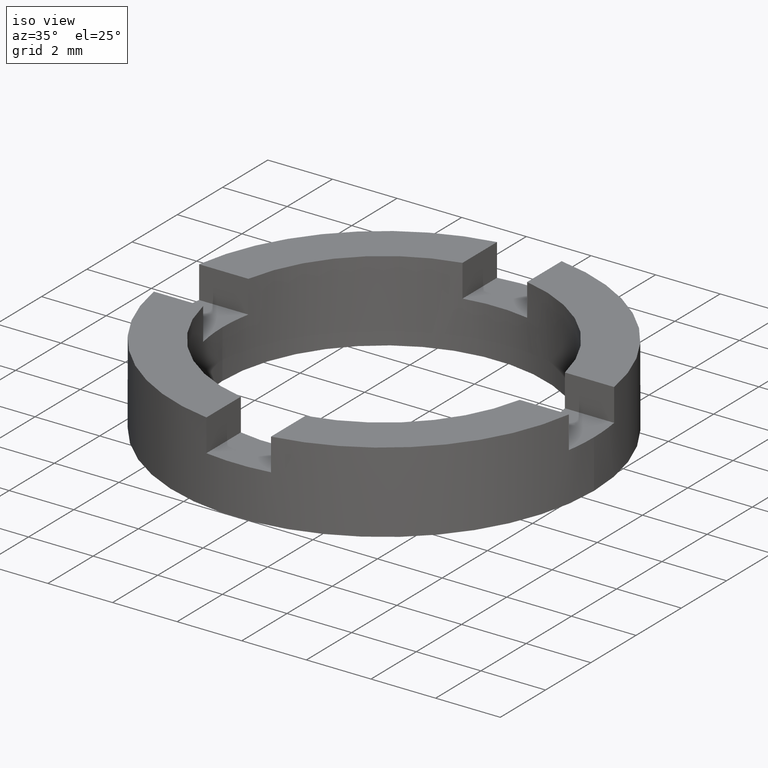
[diagram: clean part render]
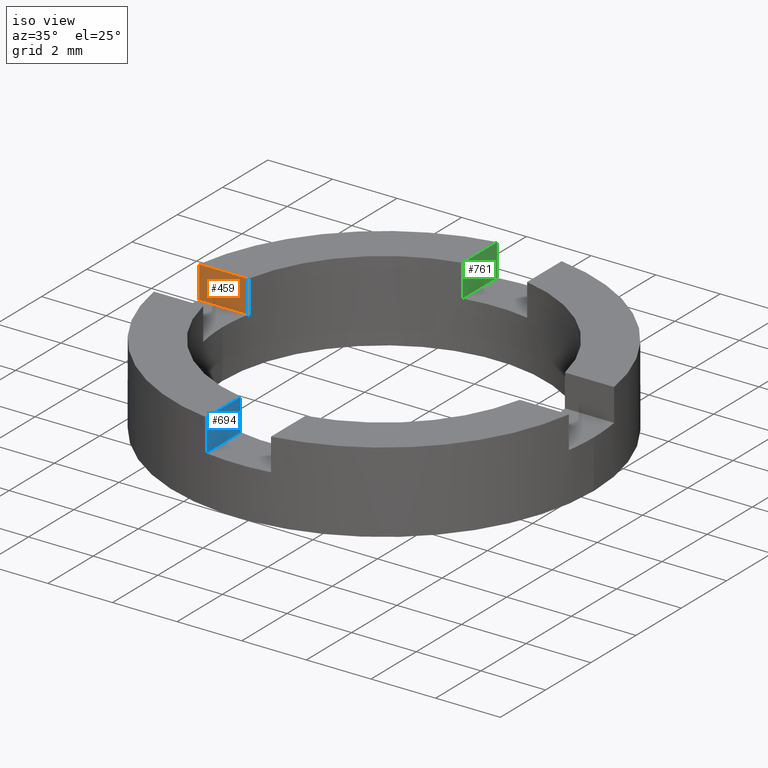
[diagram: same view with three faces highlighted in distinct colors, each labeled with its STEP entity id]
A machine part, iso view with three faces highlighted in distinct colors.
Their STEP definitions:

[orange] entity #459 — the highlighted planar face has unit normal (-0, -1, 0).
#35 = CARTESIAN_POINT ( 'NONE',  ( -4.898979485566353098, 1.000000000000017097, 1.500000000000000000 ) ) ;
#59 = LINE ( 'NONE', #471, #358 ) ;
#69 = FACE_OUTER_BOUND ( 'NONE', #411, .T. ) ;
#73 = VECTOR ( 'NONE', #536, 1000.000000000000000 ) ;
#100 = LINE ( 'NONE', #492, #73 ) ;
#111 = EDGE_CURVE ( 'NONE', #151, #284, #100, .T. ) ;
#151 = VERTEX_POINT ( 'NONE', #272 ) ;
#176 = DIRECTION ( 'NONE',  ( -3.736327486719276758E-15, -1.000000000000000000, 0.000000000000000000 ) ) ;
#201 = DIRECTION ( 'NONE',  ( 1.000000000000000000, -3.736327486719276758E-15, 0.000000000000000000 ) ) ;
#249 = EDGE_CURVE ( 'NONE', #284, #625, #337, .T. ) ;
#255 = CARTESIAN_POINT ( 'NONE',  ( -4.898979485566353098, 1.000000000000017097, 2.500000000000000000 ) ) ;
#272 = CARTESIAN_POINT ( 'NONE',  ( -6.422616289332562012, 1.000000000000023093, 1.500000000000000000 ) ) ;
#284 = VERTEX_POINT ( 'NONE', #530 ) ;
#304 = VECTOR ( 'NONE', #201, 1000.000000000000000 ) ;
#321 = DIRECTION ( 'NONE',  ( -0.000000000000000000, -0.000000000000000000, 1.000000000000000000 ) ) ;
#337 = LINE ( 'NONE', #431, #590 ) ;
#358 = VECTOR ( 'NONE', #321, 1000.000000000000000 ) ;
#367 = LINE ( 'NONE', #662, #304 ) ;
#392 = ORIENTED_EDGE ( 'NONE', *, *, #249, .F. ) ;
#411 = EDGE_LOOP ( 'NONE', ( #392, #539, #545, #763 ) ) ;
#431 = CARTESIAN_POINT ( 'NONE',  ( 3.736327486719272814E-15, 0.9999999999999988898, 2.500000000000000000 ) ) ;
#441 = AXIS2_PLACEMENT_3D ( 'NONE', #718, #176, #464 ) ;
#443 = DIRECTION ( 'NONE',  ( 1.000000000000000000, -3.736327486719276758E-15, 0.000000000000000000 ) ) ;
#459 = ADVANCED_FACE ( 'NONE', ( #69 ), #670, .T. ) ;
#464 = DIRECTION ( 'NONE',  ( 1.000000000000000000, -3.736327486719276758E-15, 0.000000000000000000 ) ) ;
#471 = CARTESIAN_POINT ( 'NONE',  ( -4.898979485566353098, 1.000000000000017097, 1.500000000000000000 ) ) ;
#492 = CARTESIAN_POINT ( 'NONE',  ( -6.422616289332562012, 1.000000000000023093, 1.500000000000000000 ) ) ;
#530 = CARTESIAN_POINT ( 'NONE',  ( -6.422616289332562012, 1.000000000000023093, 2.500000000000000000 ) ) ;
#536 = DIRECTION ( 'NONE',  ( -0.000000000000000000, -0.000000000000000000, 1.000000000000000000 ) ) ;
#539 = ORIENTED_EDGE ( 'NONE', *, *, #111, .F. ) ;
#545 = ORIENTED_EDGE ( 'NONE', *, *, #560, .T. ) ;
#560 = EDGE_CURVE ( 'NONE', #151, #709, #367, .T. ) ;
#590 = VECTOR ( 'NONE', #443, 1000.000000000000000 ) ;
#625 = VERTEX_POINT ( 'NONE', #255 ) ;
#662 = CARTESIAN_POINT ( 'NONE',  ( 3.736327486719272814E-15, 0.9999999999999988898, 1.500000000000000000 ) ) ;
#670 = PLANE ( 'NONE',  #441 ) ;
#683 = EDGE_CURVE ( 'NONE', #709, #625, #59, .T. ) ;
#709 = VERTEX_POINT ( 'NONE', #35 ) ;
#718 = CARTESIAN_POINT ( 'NONE',  ( 3.736327486719272814E-15, 0.9999999999999988898, 1.500000000000000000 ) ) ;
#763 = ORIENTED_EDGE ( 'NONE', *, *, #683, .T. ) ;

[blue] entity #694 — the highlighted planar face has unit normal (1, 0, 0).
#39 = EDGE_CURVE ( 'NONE', #697, #195, #647, .T. ) ;
#115 = VERTEX_POINT ( 'NONE', #624 ) ;
#130 = VERTEX_POINT ( 'NONE', #519 ) ;
#137 = VECTOR ( 'NONE', #503, 1000.000000000000000 ) ;
#143 = ORIENTED_EDGE ( 'NONE', *, *, #147, .F. ) ;
#145 = ORIENTED_EDGE ( 'NONE', *, *, #39, .T. ) ;
#147 = EDGE_CURVE ( 'NONE', #130, #195, #595, .T. ) ;
#177 = CARTESIAN_POINT ( 'NONE',  ( -0.9999999999999986677, -4.898979485566356651, 1.500000000000000000 ) ) ;
#195 = VERTEX_POINT ( 'NONE', #727 ) ;
#222 = CARTESIAN_POINT ( 'NONE',  ( -0.9999999999999986677, 0.000000000000000000, 2.500000000000000000 ) ) ;
#283 = DIRECTION ( 'NONE',  ( -0.000000000000000000, -0.000000000000000000, 1.000000000000000000 ) ) ;
#285 = ORIENTED_EDGE ( 'NONE', *, *, #573, .T. ) ;
#309 = LINE ( 'NONE', #654, #336 ) ;
#336 = VECTOR ( 'NONE', #712, 1000.000000000000000 ) ;
#376 = VECTOR ( 'NONE', #724, 1000.000000000000000 ) ;
#401 = AXIS2_PLACEMENT_3D ( 'NONE', #475, #673, #721 ) ;
#417 = CARTESIAN_POINT ( 'NONE',  ( -0.9999999999999986677, -4.898979485566356651, 1.500000000000000000 ) ) ;
#436 = ORIENTED_EDGE ( 'NONE', *, *, #614, .F. ) ;
#475 = CARTESIAN_POINT ( 'NONE',  ( -0.9999999999999986677, 0.000000000000000000, 1.500000000000000000 ) ) ;
#503 = DIRECTION ( 'NONE',  ( -0.000000000000000000, -0.000000000000000000, 1.000000000000000000 ) ) ;
#519 = CARTESIAN_POINT ( 'NONE',  ( -0.9999999999999986677, -6.422616289332565565, 2.500000000000000000 ) ) ;
#558 = PLANE ( 'NONE',  #401 ) ;
#573 = EDGE_CURVE ( 'NONE', #115, #697, #309, .T. ) ;
#595 = LINE ( 'NONE', #222, #376 ) ;
#598 = FACE_OUTER_BOUND ( 'NONE', #632, .T. ) ;
#608 = LINE ( 'NONE', #692, #621 ) ;
#614 = EDGE_CURVE ( 'NONE', #115, #130, #608, .T. ) ;
#621 = VECTOR ( 'NONE', #283, 1000.000000000000000 ) ;
#624 = CARTESIAN_POINT ( 'NONE',  ( -0.9999999999999986677, -6.422616289332565565, 1.500000000000000000 ) ) ;
#632 = EDGE_LOOP ( 'NONE', ( #143, #436, #285, #145 ) ) ;
#647 = LINE ( 'NONE', #417, #137 ) ;
#654 = CARTESIAN_POINT ( 'NONE',  ( -0.9999999999999986677, 0.000000000000000000, 1.500000000000000000 ) ) ;
#673 = DIRECTION ( 'NONE',  ( 1.000000000000000000, 0.000000000000000000, 0.000000000000000000 ) ) ;
#692 = CARTESIAN_POINT ( 'NONE',  ( -0.9999999999999986677, -6.422616289332565565, 1.500000000000000000 ) ) ;
#694 = ADVANCED_FACE ( 'NONE', ( #598 ), #558, .T. ) ;
#697 = VERTEX_POINT ( 'NONE', #177 ) ;
#712 = DIRECTION ( 'NONE',  ( 0.000000000000000000, 1.000000000000000000, -0.000000000000000000 ) ) ;
#721 = DIRECTION ( 'NONE',  ( 0.000000000000000000, 0.000000000000000000, -1.000000000000000000 ) ) ;
#724 = DIRECTION ( 'NONE',  ( 0.000000000000000000, 1.000000000000000000, -0.000000000000000000 ) ) ;
#727 = CARTESIAN_POINT ( 'NONE',  ( -0.9999999999999986677, -4.898979485566356651, 2.500000000000000000 ) ) ;

[green] entity #761 — the highlighted planar face has unit normal (1, 0, 0).
#5 = CARTESIAN_POINT ( 'NONE',  ( -0.9999999999999986677, 0.000000000000000000, 2.500000000000000000 ) ) ;
#10 = CARTESIAN_POINT ( 'NONE',  ( -0.9999999999999986677, 4.898979485566356651, 1.500000000000000000 ) ) ;
#14 = VERTEX_POINT ( 'NONE', #166 ) ;
#22 = DIRECTION ( 'NONE',  ( 0.000000000000000000, 0.000000000000000000, -1.000000000000000000 ) ) ;
#31 = CARTESIAN_POINT ( 'NONE',  ( -0.9999999999999986677, 0.000000000000000000, 1.500000000000000000 ) ) ;
#36 = EDGE_CURVE ( 'NONE', #14, #606, #134, .T. ) ;
#43 = EDGE_CURVE ( 'NONE', #133, #14, #374, .T. ) ;
#82 = EDGE_CURVE ( 'NONE', #380, #606, #633, .T. ) ;
#85 = VECTOR ( 'NONE', #265, 1000.000000000000000 ) ;
#96 = VECTOR ( 'NONE', #252, 1000.000000000000000 ) ;
#103 = VECTOR ( 'NONE', #172, 1000.000000000000000 ) ;
#125 = ORIENTED_EDGE ( 'NONE', *, *, #161, .T. ) ;
#133 = VERTEX_POINT ( 'NONE', #230 ) ;
#134 = LINE ( 'NONE', #5, #381 ) ;
#135 = DIRECTION ( 'NONE',  ( 1.000000000000000000, 0.000000000000000000, 0.000000000000000000 ) ) ;
#161 = EDGE_CURVE ( 'NONE', #133, #380, #588, .T. ) ;
#166 = CARTESIAN_POINT ( 'NONE',  ( -0.9999999999999986677, 4.898979485566356651, 2.500000000000000000 ) ) ;
#172 = DIRECTION ( 'NONE',  ( -0.000000000000000000, -0.000000000000000000, 1.000000000000000000 ) ) ;
#213 = CARTESIAN_POINT ( 'NONE',  ( -0.9999999999999986677, 6.422616289332565565, 1.500000000000000000 ) ) ;
#219 = AXIS2_PLACEMENT_3D ( 'NONE', #31, #135, #22 ) ;
#230 = CARTESIAN_POINT ( 'NONE',  ( -0.9999999999999986677, 4.898979485566356651, 1.500000000000000000 ) ) ;
#236 = CARTESIAN_POINT ( 'NONE',  ( -0.9999999999999986677, 6.422616289332565565, 2.500000000000000000 ) ) ;
#252 = DIRECTION ( 'NONE',  ( -0.000000000000000000, -0.000000000000000000, 1.000000000000000000 ) ) ;
#265 = DIRECTION ( 'NONE',  ( 0.000000000000000000, 1.000000000000000000, -0.000000000000000000 ) ) ;
#273 = EDGE_LOOP ( 'NONE', ( #377, #494, #125, #657 ) ) ;
#314 = FACE_OUTER_BOUND ( 'NONE', #273, .T. ) ;
#334 = CARTESIAN_POINT ( 'NONE',  ( -0.9999999999999986677, 6.422616289332565565, 1.500000000000000000 ) ) ;
#374 = LINE ( 'NONE', #10, #103 ) ;
#377 = ORIENTED_EDGE ( 'NONE', *, *, #36, .F. ) ;
#380 = VERTEX_POINT ( 'NONE', #334 ) ;
#381 = VECTOR ( 'NONE', #458, 1000.000000000000000 ) ;
#433 = CARTESIAN_POINT ( 'NONE',  ( -0.9999999999999986677, 0.000000000000000000, 1.500000000000000000 ) ) ;
#458 = DIRECTION ( 'NONE',  ( 0.000000000000000000, 1.000000000000000000, -0.000000000000000000 ) ) ;
#494 = ORIENTED_EDGE ( 'NONE', *, *, #43, .F. ) ;
#588 = LINE ( 'NONE', #433, #85 ) ;
#606 = VERTEX_POINT ( 'NONE', #236 ) ;
#633 = LINE ( 'NONE', #213, #96 ) ;
#657 = ORIENTED_EDGE ( 'NONE', *, *, #82, .T. ) ;
#761 = ADVANCED_FACE ( 'NONE', ( #314 ), #773, .T. ) ;
#773 = PLANE ( 'NONE',  #219 ) ;